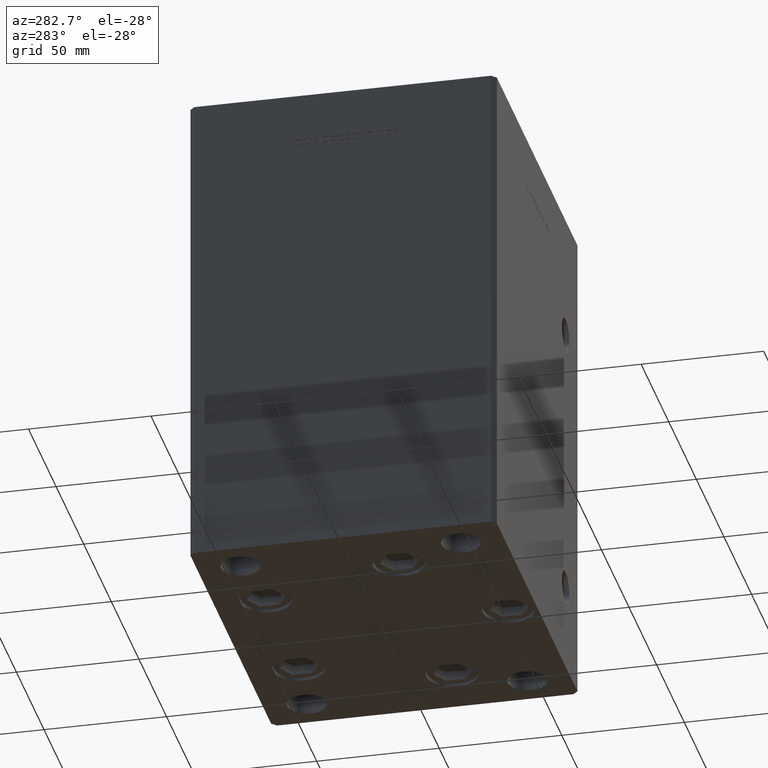
[diagram: clean part render]
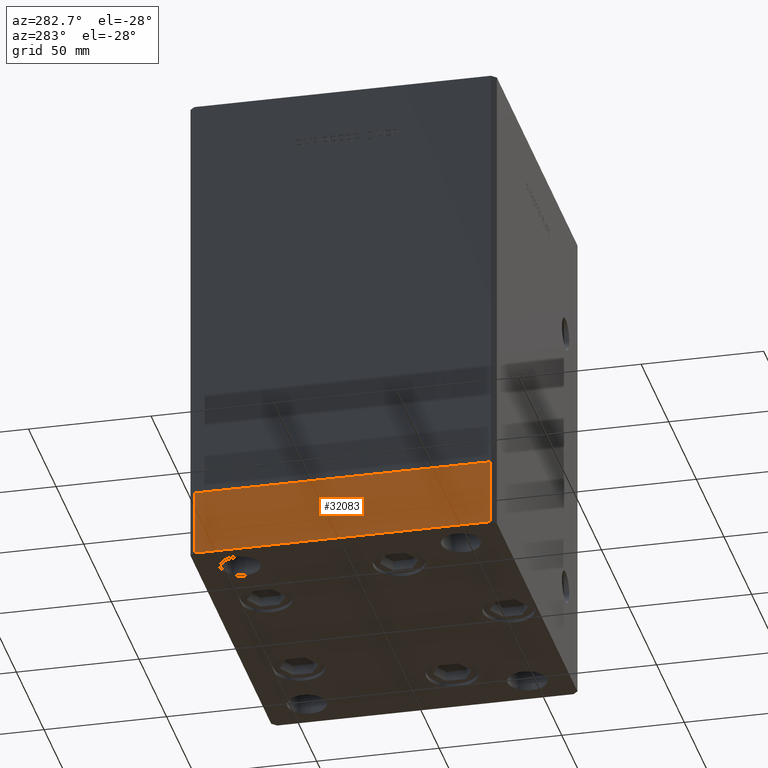
[diagram: same view with one face highlighted and labeled with its STEP entity id]
A machine part, auxiliary view. The second image highlights one B-rep face of the part: STEP entity #32083.
In plain terms, the highlighted planar face has unit normal (-1, 0, 0).
Its self-contained STEP definition (entity closure, byte-faithful):
#910 = CARTESIAN_POINT ( 'NONE',  ( 75.00000000000001421, -60.50000000000000711, 0.000000000000000000 ) ) ;
#1241 = CARTESIAN_POINT ( 'NONE',  ( 75.00000000000001421, -60.50000000000000711, -27.00000000000000000 ) ) ;
#2194 = ORIENTED_EDGE ( 'NONE', *, *, #16775, .T. ) ;
#7844 = VERTEX_POINT ( 'NONE', #1241 ) ;
#9213 = ORIENTED_EDGE ( 'NONE', *, *, #22043, .F. ) ;
#13230 = VECTOR ( 'NONE', #23909, 1000.000000000000000 ) ;
#13255 = LINE ( 'NONE', #17464, #47032 ) ;
#16775 = EDGE_CURVE ( 'NONE', #47445, #19438, #36034, .T. ) ;
#17332 = DIRECTION ( 'NONE',  ( -6.881547673296424104E-16, 1.000000000000000000, 0.000000000000000000 ) ) ;
#17464 = CARTESIAN_POINT ( 'NONE',  ( 75.00000000000001421, -60.50000000000000711, 0.000000000000000000 ) ) ;
#19438 = VERTEX_POINT ( 'NONE', #45691 ) ;
#19718 = DIRECTION ( 'NONE',  ( 1.000000000000000000, 6.881547673296424104E-16, -0.000000000000000000 ) ) ;
#20405 = VECTOR ( 'NONE', #17332, 1000.000000000000000 ) ;
#21115 = LINE ( 'NONE', #33759, #42335 ) ;
#22043 = EDGE_CURVE ( 'NONE', #35756, #19438, #13255, .T. ) ;
#23909 = DIRECTION ( 'NONE',  ( 0.000000000000000000, 0.000000000000000000, 1.000000000000000000 ) ) ;
#24968 = CARTESIAN_POINT ( 'NONE',  ( 75.00000000000001421, -60.50000000000000711, -27.00000000000000000 ) ) ;
#25064 = DIRECTION ( 'NONE',  ( 0.000000000000000000, 0.000000000000000000, 1.000000000000000000 ) ) ;
#29317 = DIRECTION ( 'NONE',  ( -6.881547673296424104E-16, 1.000000000000000000, 0.000000000000000000 ) ) ;
#30378 = AXIS2_PLACEMENT_3D ( 'NONE', #31832, #19718, #31062 ) ;
#30719 = CARTESIAN_POINT ( 'NONE',  ( 74.99999999999992895, 60.50000000000002842, -27.00000000000000000 ) ) ;
#31062 = DIRECTION ( 'NONE',  ( -6.881547673296424104E-16, 1.000000000000000000, 0.000000000000000000 ) ) ;
#31832 = CARTESIAN_POINT ( 'NONE',  ( 75.00000000000001421, -60.50000000000000711, -27.00000000000000000 ) ) ;
#32083 = ADVANCED_FACE ( 'NONE', ( #51849 ), #43184, .T. ) ;
#33759 = CARTESIAN_POINT ( 'NONE',  ( 75.00000000000001421, -60.50000000000000711, -27.00000000000000000 ) ) ;
#34594 = ORIENTED_EDGE ( 'NONE', *, *, #39162, .F. ) ;
#35756 = VERTEX_POINT ( 'NONE', #910 ) ;
#36034 = LINE ( 'NONE', #44728, #13230 ) ;
#36893 = EDGE_CURVE ( 'NONE', #7844, #47445, #37092, .T. ) ;
#37092 = LINE ( 'NONE', #24968, #20405 ) ;
#39162 = EDGE_CURVE ( 'NONE', #7844, #35756, #21115, .T. ) ;
#42335 = VECTOR ( 'NONE', #25064, 1000.000000000000000 ) ;
#43184 = PLANE ( 'NONE',  #30378 ) ;
#44728 = CARTESIAN_POINT ( 'NONE',  ( 74.99999999999992895, 60.50000000000002842, -27.00000000000000000 ) ) ;
#45691 = CARTESIAN_POINT ( 'NONE',  ( 74.99999999999992895, 60.50000000000002842, 0.000000000000000000 ) ) ;
#47032 = VECTOR ( 'NONE', #29317, 1000.000000000000000 ) ;
#47390 = EDGE_LOOP ( 'NONE', ( #9213, #34594, #51708, #2194 ) ) ;
#47445 = VERTEX_POINT ( 'NONE', #30719 ) ;
#51708 = ORIENTED_EDGE ( 'NONE', *, *, #36893, .T. ) ;
#51849 = FACE_OUTER_BOUND ( 'NONE', #47390, .T. ) ;